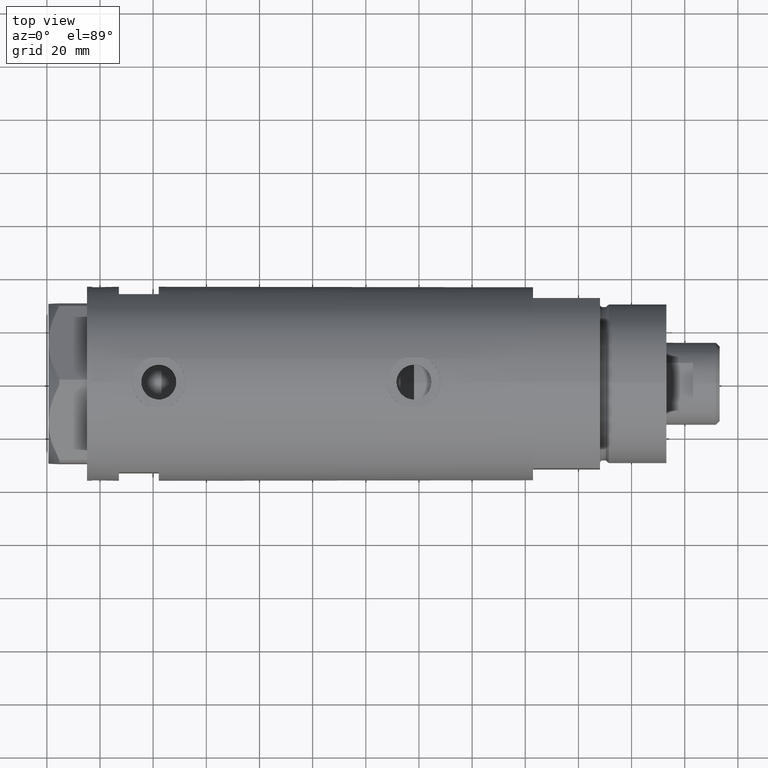
[diagram: clean part render]
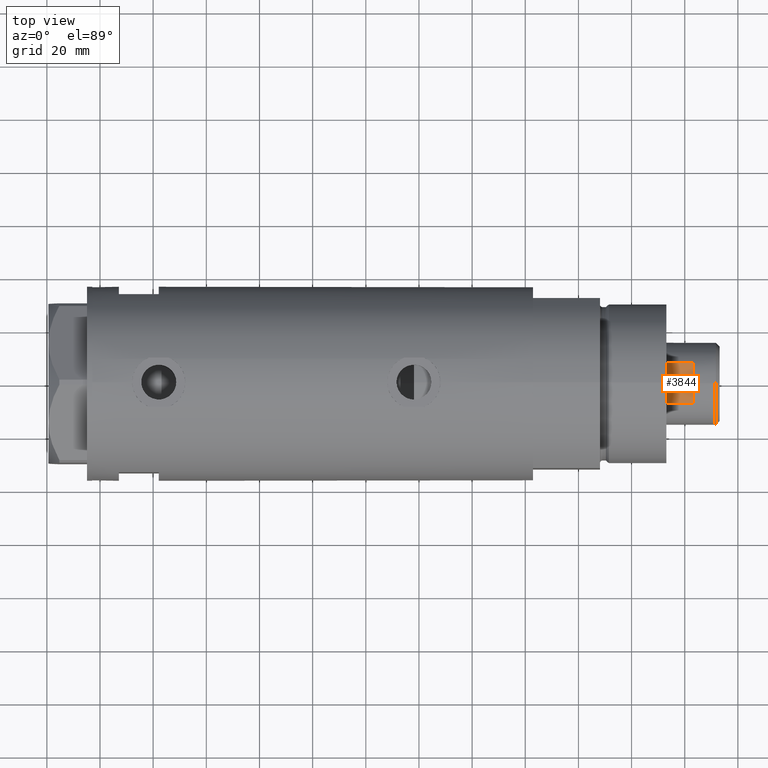
[diagram: same view with one face highlighted and labeled with its STEP entity id]
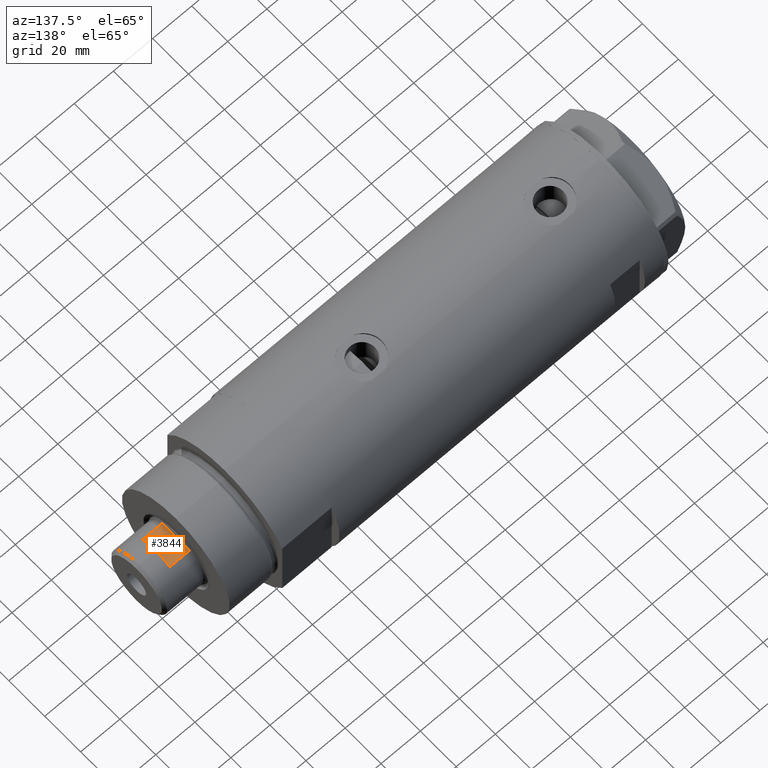
[diagram: same view with one face highlighted and labeled with its STEP entity id]
A machine part, top view. The second image highlights one B-rep face of the part: STEP entity #3844.
A second angle (auxiliary view) of the same face is appended — the face is thin or edge-on in the first view.
In plain terms, the highlighted planar face has unit normal (-0, -0, -1).
Its self-contained STEP definition (entity closure, byte-faithful):
#197 = CARTESIAN_POINT ( 'NONE',  ( -13.48630416385452335, -7.640000000000004121, 200.0000000000000000 ) ) ;
#221 = LINE ( 'NONE', #589, #838 ) ;
#432 = DIRECTION ( 'NONE',  ( -1.135290232969114736E-16, 1.000000000000000000, 0.000000000000000000 ) ) ;
#556 = VECTOR ( 'NONE', #1126, 1000.000000000000000 ) ;
#589 = CARTESIAN_POINT ( 'NONE',  ( -13.48630416385452868, 7.639999999999998792, 200.0000000000000000 ) ) ;
#759 = LINE ( 'NONE', #2537, #556 ) ;
#806 = VERTEX_POINT ( 'NONE', #1956 ) ;
#838 = VECTOR ( 'NONE', #3277, 1000.000000000000000 ) ;
#852 = VERTEX_POINT ( 'NONE', #1447 ) ;
#951 = VERTEX_POINT ( 'NONE', #2076 ) ;
#1101 = EDGE_CURVE ( 'NONE', #806, #852, #4265, .T. ) ;
#1126 = DIRECTION ( 'NONE',  ( -0.000000000000000000, -0.000000000000000000, -1.000000000000000000 ) ) ;
#1447 = CARTESIAN_POINT ( 'NONE',  ( -13.48630416385452513, -7.639999999999921521, 190.0000000000000000 ) ) ;
#1466 = DIRECTION ( 'NONE',  ( 1.135290232969114736E-16, -1.000000000000000000, -0.000000000000000000 ) ) ;
#1853 = ORIENTED_EDGE ( 'NONE', *, *, #3000, .F. ) ;
#1956 = CARTESIAN_POINT ( 'NONE',  ( -13.48630416385452513, 7.639999999999917968, 190.0000000000000000 ) ) ;
#2076 = CARTESIAN_POINT ( 'NONE',  ( -13.48630416385452868, 7.639999999999998792, 200.0000000000000000 ) ) ;
#2148 = CARTESIAN_POINT ( 'NONE',  ( -13.48630416385452691, -7.640000000000001457, 200.0000000000000000 ) ) ;
#2162 = ORIENTED_EDGE ( 'NONE', *, *, #4143, .F. ) ;
#2212 = VECTOR ( 'NONE', #2897, 1000.000000000000000 ) ;
#2316 = EDGE_CURVE ( 'NONE', #951, #806, #221, .T. ) ;
#2537 = CARTESIAN_POINT ( 'NONE',  ( -13.48630416385452691, -7.640000000000001457, 200.0000000000000000 ) ) ;
#2660 = ORIENTED_EDGE ( 'NONE', *, *, #2316, .T. ) ;
#2836 = FACE_OUTER_BOUND ( 'NONE', #3431, .T. ) ;
#2897 = DIRECTION ( 'NONE',  ( 1.135290232969114736E-16, -1.000000000000000000, -0.000000000000000000 ) ) ;
#3000 = EDGE_CURVE ( 'NONE', #951, #3961, #3629, .T. ) ;
#3209 = ORIENTED_EDGE ( 'NONE', *, *, #1101, .T. ) ;
#3224 = VECTOR ( 'NONE', #1466, 1000.000000000000000 ) ;
#3277 = DIRECTION ( 'NONE',  ( -0.000000000000000000, -0.000000000000000000, -1.000000000000000000 ) ) ;
#3375 = AXIS2_PLACEMENT_3D ( 'NONE', #2148, #3532, #432 ) ;
#3431 = EDGE_LOOP ( 'NONE', ( #3209, #2162, #1853, #2660 ) ) ;
#3532 = DIRECTION ( 'NONE',  ( 1.000000000000000000, 1.135290232969114736E-16, -0.000000000000000000 ) ) ;
#3608 = CARTESIAN_POINT ( 'NONE',  ( -13.48630416385452691, -7.640000000000001457, 200.0000000000000000 ) ) ;
#3629 = LINE ( 'NONE', #3608, #2212 ) ;
#3844 = ADVANCED_FACE ( 'NONE', ( #2836 ), #3874, .F. ) ;
#3874 = PLANE ( 'NONE',  #3375 ) ;
#3961 = VERTEX_POINT ( 'NONE', #197 ) ;
#4143 = EDGE_CURVE ( 'NONE', #3961, #852, #759, .T. ) ;
#4191 = CARTESIAN_POINT ( 'NONE',  ( -13.48630416385452691, -7.640000000000001457, 190.0000000000000000 ) ) ;
#4265 = LINE ( 'NONE', #4191, #3224 ) ;